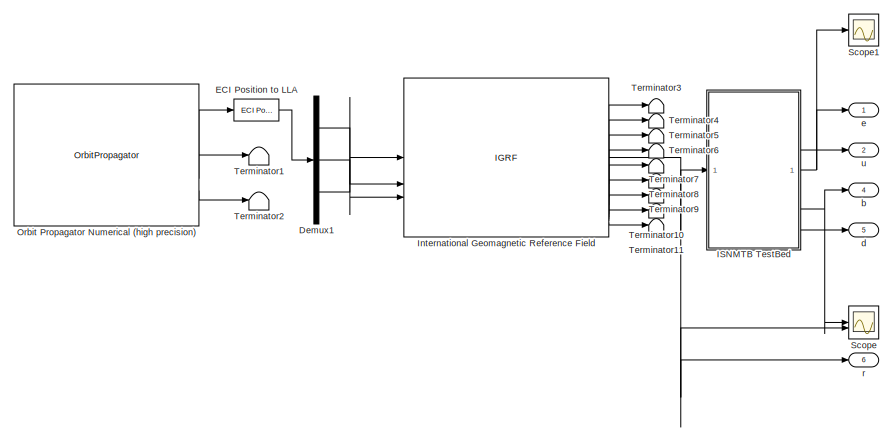
[diagram: root canvas - part 1/2, left side, full height]
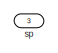
[diagram: root canvas - part 2/2, top right region]
MODEL slx_f332fd20e96f
KIND model
CONFIG AbsTol = auto
CONFIG EnableMultiTasking = off
CONFIG FixedStep = 1E-4
CONFIG MaxStep = auto
CONFIG MinStep = auto
CONFIG RelTol = 1e-3
CONFIG SampleTimeConstraint = Unconstrained
CONFIG SolverName = FixedStepAuto
CONFIG StartTime = 0.0
CONFIG StopTime = 20000
BLOCK [Demux] Demux1
  Outputs = 3
BLOCK [Reference] ECI Position to LLA  REF=aerolibtransform2/ECI Position to LLA
  AttributesFormatString = %<red>
  SourceBlock = aerolibtransform2/ECI Position to LLA
  SourceType = ECItoLLA
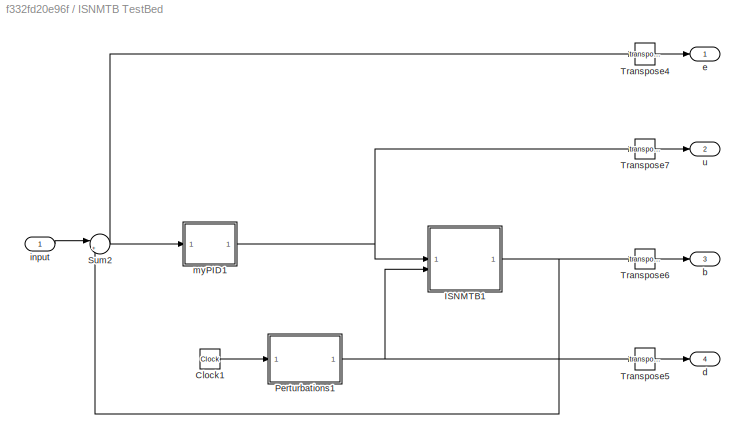
BLOCK [SubSystem] ISNMTB TestBed
BLOCK [Clock] ISNMTB TestBed/Clock1
  Decimation = 1000
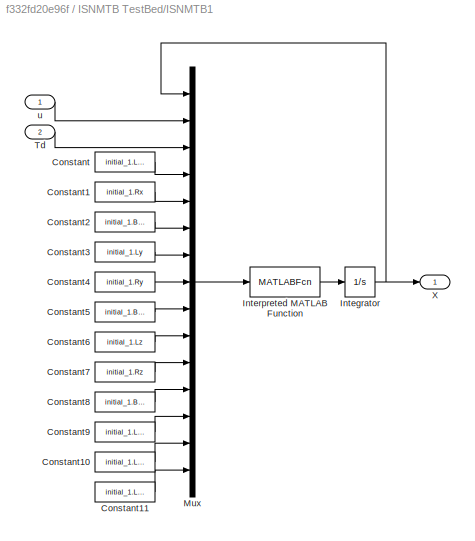
BLOCK [SubSystem] ISNMTB TestBed/ISNMTB1
BLOCK [Constant] ISNMTB TestBed/ISNMTB1/Constant
  Value = initial_1.Lx
BLOCK [Constant] ISNMTB TestBed/ISNMTB1/Constant1
  Value = initial_1.Rx
BLOCK [Constant] ISNMTB TestBed/ISNMTB1/Constant10
  Value = initial_1.Lxz
BLOCK [Constant] ISNMTB TestBed/ISNMTB1/Constant11
  Value = initial_1.Lzy
BLOCK [Constant] ISNMTB TestBed/ISNMTB1/Constant2
  Value = initial_1.B_x
BLOCK [Constant] ISNMTB TestBed/ISNMTB1/Constant3
  Value = initial_1.Ly
BLOCK [Constant] ISNMTB TestBed/ISNMTB1/Constant4
  Value = initial_1.Ry
BLOCK [Constant] ISNMTB TestBed/ISNMTB1/Constant5
  Value = initial_1.B_y
BLOCK [Constant] ISNMTB TestBed/ISNMTB1/Constant6
  Value = initial_1.Lz
BLOCK [Constant] ISNMTB TestBed/ISNMTB1/Constant7
  Value = initial_1.Rz
BLOCK [Constant] ISNMTB TestBed/ISNMTB1/Constant8
  Value = initial_1.B_z
BLOCK [Constant] ISNMTB TestBed/ISNMTB1/Constant9
  Value = initial_1.Lxy
BLOCK [Integrator] ISNMTB TestBed/ISNMTB1/Integrator
  InitialCondition = [3.249E4, -2.265E4, 3.655E4]
BLOCK [MATLABFcn] ISNMTB TestBed/ISNMTB1/Interpreted MATLAB Function
  MATLABFcn = is501nmtbModel_simu
BLOCK [Mux] ISNMTB TestBed/ISNMTB1/Mux
  DisplayOption = bar
  Inputs = 15
BLOCK [Inport] ISNMTB TestBed/ISNMTB1/Td
  Port = 2
BLOCK [Outport] ISNMTB TestBed/ISNMTB1/X
BLOCK [Inport] ISNMTB TestBed/ISNMTB1/u
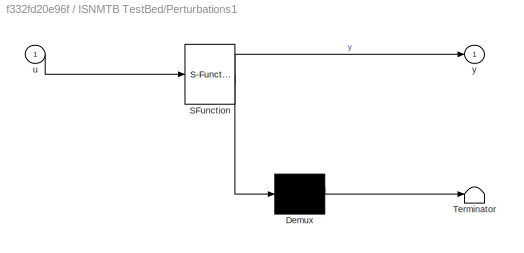
BLOCK [SubSystem] ISNMTB TestBed/Perturbations1
  ErrorFcn = Stateflow.Translate.translate
  PermitHierarchicalResolution = ExplicitOnly
  SFBlockType = MATLAB Function
  TreatAsAtomicUnit = on
BLOCK [Demux] ISNMTB TestBed/Perturbations1/ Demux 
  Outputs = 1
BLOCK [S-Function] ISNMTB TestBed/Perturbations1/ SFunction 
  EnableBusSupport = off
  FunctionName = sf_sfun
  PortCounts = [1 2]
  SFcnIsStateOwnerBlock = off
  SFunctionDeploymentMode = off
  Tag = Stateflow S-Function 1
BLOCK [Terminator] ISNMTB TestBed/Perturbations1/ Terminator 
BLOCK [Inport] ISNMTB TestBed/Perturbations1/u
BLOCK [Outport] ISNMTB TestBed/Perturbations1/y
BLOCK [Sum] ISNMTB TestBed/Sum2
  Inputs = |+-
BLOCK [Math] ISNMTB TestBed/Transpose4
  Operator = transpose
BLOCK [Math] ISNMTB TestBed/Transpose5
  Operator = transpose
BLOCK [Math] ISNMTB TestBed/Transpose6
  Operator = transpose
BLOCK [Math] ISNMTB TestBed/Transpose7
  Operator = transpose
BLOCK [Outport] ISNMTB TestBed/b
  Port = 3
BLOCK [Outport] ISNMTB TestBed/d
  Port = 4
BLOCK [Outport] ISNMTB TestBed/e
BLOCK [Inport] ISNMTB TestBed/input
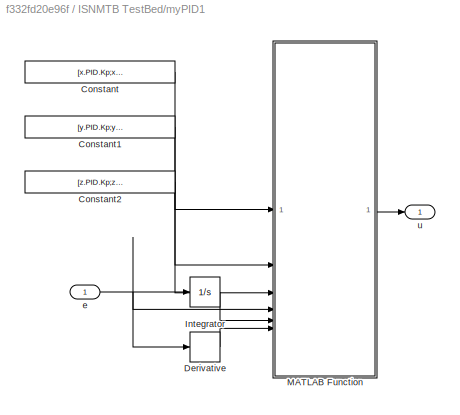
BLOCK [SubSystem] ISNMTB TestBed/myPID1
BLOCK [Constant] ISNMTB TestBed/myPID1/Constant
  Value = [x.PID.Kp;x.PID.Ki;x.PID.Kd]
BLOCK [Constant] ISNMTB TestBed/myPID1/Constant1
  Value = [y.PID.Kp;y.PID.Ki;y.PID.Kd]
BLOCK [Constant] ISNMTB TestBed/myPID1/Constant2
  Value = [z.PID.Kp;z.PID.Ki;z.PID.Kd]
BLOCK [Derivative] ISNMTB TestBed/myPID1/Derivative
BLOCK [Integrator] ISNMTB TestBed/myPID1/Integrator
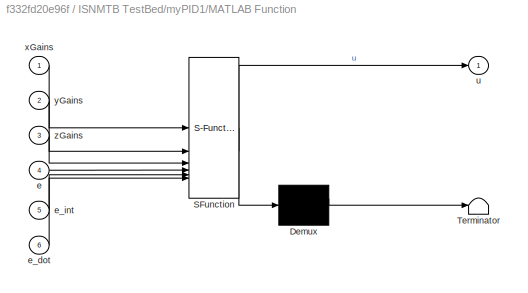
BLOCK [SubSystem] ISNMTB TestBed/myPID1/MATLAB Function
  ErrorFcn = Stateflow.Translate.translate
  PermitHierarchicalResolution = ExplicitOnly
  SFBlockType = MATLAB Function
  TreatAsAtomicUnit = on
BLOCK [Demux] ISNMTB TestBed/myPID1/MATLAB Function/ Demux 
  Outputs = 1
BLOCK [S-Function] ISNMTB TestBed/myPID1/MATLAB Function/ SFunction 
  EnableBusSupport = off
  FunctionName = sf_sfun
  PortCounts = [6 2]
  SFcnIsStateOwnerBlock = off
  SFunctionDeploymentMode = off
  Tag = Stateflow S-Function 3
BLOCK [Terminator] ISNMTB TestBed/myPID1/MATLAB Function/ Terminator 
BLOCK [Inport] ISNMTB TestBed/myPID1/MATLAB Function/e
  Port = 4
BLOCK [Inport] ISNMTB TestBed/myPID1/MATLAB Function/e_dot
  Port = 6
BLOCK [Inport] ISNMTB TestBed/myPID1/MATLAB Function/e_int
  Port = 5
BLOCK [Outport] ISNMTB TestBed/myPID1/MATLAB Function/u
BLOCK [Inport] ISNMTB TestBed/myPID1/MATLAB Function/xGains
BLOCK [Inport] ISNMTB TestBed/myPID1/MATLAB Function/yGains
  Port = 2
BLOCK [Inport] ISNMTB TestBed/myPID1/MATLAB Function/zGains
  Port = 3
BLOCK [Inport] ISNMTB TestBed/myPID1/e
BLOCK [Outport] ISNMTB TestBed/myPID1/u
BLOCK [Outport] ISNMTB TestBed/u
  Port = 2
BLOCK [IGRF] International Geomagnetic Reference Field
  AttributesFormatString = %<generation>
  day = 1
  month = January
  time_in = off
  year = 2020
BLOCK [OrbitPropagator] Orbit Propagator Numerical (high precision)
  accelFrame = Fixed-frame
  argPeriapsis = orbit.argumentOfPeriapsis
  customJ2 = 1.0826269e-03
  customMu = 4.305e13
  customOmega = 4.06125949e-3
  customR = 3396200
  eccentricity = orbit.eccentricity
  fixedPosition = [-4142689.0 -2676864.7 -4669861.6]
  fixedVelocity = [1452.7 -6720.7 2568.1]
  gravityModel = None
  inclination = orbit.inclination
  inertialPosition = [3649700.0 3308200.0 -4676600.0]
  inertialVelocity = [-2750.8 6666.4 2573.4]
  outportFrame = Fixed-frame
  outputTransform = on
  raan = orbit.rightAscensionOfAscendingNode
  semiMajorAxis = orbit.semiMajorAxis
  trueAnomaly = orbit.trueAnomaly
BLOCK [Scope] Scope
  Floating = off
  NumInputPorts = 2
  ScopeSpecificationString = Simulink.scopes.TimeScopeBlockCfg('CurrentConfiguration', extmgr.ConfigurationSet(extmgr.Configuration('Core','General UI',true),extmgr.Configuration('Core','Source UI',true),extmgr.Configuration('Sources','WiredSimulink',true,'DataLoggingVariableName','ScopeData1'),extmgr.Configuration('Visuals','Time Domain',true,'SerializedDisplays',{struct('MinYLimReal','20587.58854','MaxYLimReal','20587.59071...<+1890ch>
BLOCK [Scope] Scope1
  Floating = off
  NumInputPorts = 1
  ScopeSpecificationString = Simulink.scopes.TimeScopeBlockCfg('CurrentConfiguration', extmgr.ConfigurationSet(extmgr.Configuration('Core','General UI',true),extmgr.Configuration('Core','Source UI',true),extmgr.Configuration('Sources','WiredSimulink',true,'DataLoggingVariableName','ScopeData1'),extmgr.Configuration('Visuals','Time Domain',true,'SerializedDisplays',{struct('MinYLimReal','-859.11165','MaxYLimReal','950.54008','...<+1575ch>
BLOCK [Terminator] Terminator1
BLOCK [Terminator] Terminator10
BLOCK [Terminator] Terminator11
BLOCK [Terminator] Terminator2
BLOCK [Terminator] Terminator3
BLOCK [Terminator] Terminator4
BLOCK [Terminator] Terminator5
BLOCK [Terminator] Terminator6
BLOCK [Terminator] Terminator7
BLOCK [Terminator] Terminator8
BLOCK [Terminator] Terminator9
BLOCK [Outport] b
  Port = 4
BLOCK [Outport] d
  Port = 5
BLOCK [Outport] e
BLOCK [Outport] r
  Port = 6
BLOCK [Outport] sp
  Port = 3
BLOCK [Outport] u
  Port = 2
LINE Demux1:1 -> International Geomagnetic Reference Field:2
LINE Demux1:2 -> International Geomagnetic Reference Field:3
LINE Demux1:3 -> International Geomagnetic Reference Field:1
LINE ECI Position to LLA:1 -> Demux1:1
LINE ISNMTB TestBed/Clock1:1 -> ISNMTB TestBed/Perturbations1:1
LINE ISNMTB TestBed/ISNMTB1/Constant10:1 -> ISNMTB TestBed/ISNMTB1/Mux:14
LINE ISNMTB TestBed/ISNMTB1/Constant11:1 -> ISNMTB TestBed/ISNMTB1/Mux:15
LINE ISNMTB TestBed/ISNMTB1/Constant1:1 -> ISNMTB TestBed/ISNMTB1/Mux:5
LINE ISNMTB TestBed/ISNMTB1/Constant2:1 -> ISNMTB TestBed/ISNMTB1/Mux:6
LINE ISNMTB TestBed/ISNMTB1/Constant3:1 -> ISNMTB TestBed/ISNMTB1/Mux:7
LINE ISNMTB TestBed/ISNMTB1/Constant4:1 -> ISNMTB TestBed/ISNMTB1/Mux:8
LINE ISNMTB TestBed/ISNMTB1/Constant5:1 -> ISNMTB TestBed/ISNMTB1/Mux:9
LINE ISNMTB TestBed/ISNMTB1/Constant6:1 -> ISNMTB TestBed/ISNMTB1/Mux:10
LINE ISNMTB TestBed/ISNMTB1/Constant7:1 -> ISNMTB TestBed/ISNMTB1/Mux:11
LINE ISNMTB TestBed/ISNMTB1/Constant8:1 -> ISNMTB TestBed/ISNMTB1/Mux:12
LINE ISNMTB TestBed/ISNMTB1/Constant9:1 -> ISNMTB TestBed/ISNMTB1/Mux:13
LINE ISNMTB TestBed/ISNMTB1/Constant:1 -> ISNMTB TestBed/ISNMTB1/Mux:4
NET ISNMTB TestBed/ISNMTB1/Integrator:1 -> ISNMTB TestBed/ISNMTB1/Mux:1, ISNMTB TestBed/ISNMTB1/X:1
LINE ISNMTB TestBed/ISNMTB1/Interpreted MATLAB Function:1 -> ISNMTB TestBed/ISNMTB1/Integrator:1
LINE ISNMTB TestBed/ISNMTB1/Mux:1 -> ISNMTB TestBed/ISNMTB1/Interpreted MATLAB Function:1
LINE ISNMTB TestBed/ISNMTB1/Td:1 -> ISNMTB TestBed/ISNMTB1/Mux:3
LINE ISNMTB TestBed/ISNMTB1/u:1 -> ISNMTB TestBed/ISNMTB1/Mux:2
NET ISNMTB TestBed/ISNMTB1:1 -> ISNMTB TestBed/Sum2:2, ISNMTB TestBed/Transpose6:1
NET ISNMTB TestBed/Perturbations1:1 -> ISNMTB TestBed/ISNMTB1:2, ISNMTB TestBed/Transpose5:1
NET ISNMTB TestBed/Sum2:1 -> ISNMTB TestBed/Transpose4:1, ISNMTB TestBed/myPID1:1
LINE ISNMTB TestBed/Transpose4:1 -> ISNMTB TestBed/e:1
LINE ISNMTB TestBed/Transpose5:1 -> ISNMTB TestBed/d:1
LINE ISNMTB TestBed/Transpose6:1 -> ISNMTB TestBed/b:1
LINE ISNMTB TestBed/Transpose7:1 -> ISNMTB TestBed/u:1
LINE ISNMTB TestBed/input:1 -> ISNMTB TestBed/Sum2:1
LINE ISNMTB TestBed/myPID1/Constant1:1 -> ISNMTB TestBed/myPID1/MATLAB Function:2
LINE ISNMTB TestBed/myPID1/Constant2:1 -> ISNMTB TestBed/myPID1/MATLAB Function:3
LINE ISNMTB TestBed/myPID1/Constant:1 -> ISNMTB TestBed/myPID1/MATLAB Function:1
LINE ISNMTB TestBed/myPID1/Derivative:1 -> ISNMTB TestBed/myPID1/MATLAB Function:6
LINE ISNMTB TestBed/myPID1/Integrator:1 -> ISNMTB TestBed/myPID1/MATLAB Function:5
LINE ISNMTB TestBed/myPID1/MATLAB Function:1 -> ISNMTB TestBed/myPID1/u:1
NET ISNMTB TestBed/myPID1/e:1 -> ISNMTB TestBed/myPID1/Derivative:1, ISNMTB TestBed/myPID1/Integrator:1, ISNMTB TestBed/myPID1/MATLAB Function:4
NET ISNMTB TestBed/myPID1:1 -> ISNMTB TestBed/ISNMTB1:1, ISNMTB TestBed/Transpose7:1
NET ISNMTB TestBed:1 -> Scope1:1, e:1
LINE ISNMTB TestBed:2 -> u:1
NET ISNMTB TestBed:3 -> Scope:1, b:1
LINE ISNMTB TestBed:4 -> d:1
NET International Geomagnetic Reference Field:1 -> ISNMTB TestBed:1, Scope:2, r:1
LINE International Geomagnetic Reference Field:10 -> Terminator11:1
LINE International Geomagnetic Reference Field:2 -> Terminator3:1
LINE International Geomagnetic Reference Field:3 -> Terminator4:1
LINE International Geomagnetic Reference Field:4 -> Terminator5:1
LINE International Geomagnetic Reference Field:5 -> Terminator6:1
LINE International Geomagnetic Reference Field:6 -> Terminator7:1
LINE International Geomagnetic Reference Field:7 -> Terminator8:1
LINE International Geomagnetic Reference Field:8 -> Terminator9:1
LINE International Geomagnetic Reference Field:9 -> Terminator10:1
LINE Orbit Propagator Numerical (high precision):1 -> ECI Position to LLA:1
LINE Orbit Propagator Numerical (high precision):2 -> Terminator1:1
LINE Orbit Propagator Numerical (high precision):3 -> Terminator2:1
note: NET lines group one-source signal fan-out (src -> all destinations, sorted); 1:1 wires keep LINE
CHART ISNMTB TestBed/Perturbations1 states=1 transitions=1
  STATE_LABEL 'eML_blk_kernel()'
  STATE_LABEL 'SCRIPT:\nfunction y = fcn(u)\ny= [2.522*sin(2*pi*4.788E-3*u)+3.249E04;\n   -5.174*sin(2*pi*7.481E-3*u)-2.265E04;\n    3.359*sin(2*pi*8.378E-3*u)+3.655E04];\nend'
CHART ISNMTB TestBed/myPID1/MATLAB Function states=1 transitions=1
  STATE_LABEL 'eML_blk_kernel()'
  STATE_LABEL 'SCRIPT:\nfunction u  = Bpid_controller(xGains, yGains, zGains, e, e_int, e_dot) \n    \n    kp = diag([xGains(1),yGains(1),zGains(1)]);\n    ki = diag([xGains(2),yGains(2),zGains(2)]);\n    kd = diag([xGains(3),yGains(3),zGains(3)]);\n\n    u=kp*e+ki*e_int+kd*e_dot;\n\nend\n'
CHART  states=0 transitions=0
CHART  states=0 transitions=0
